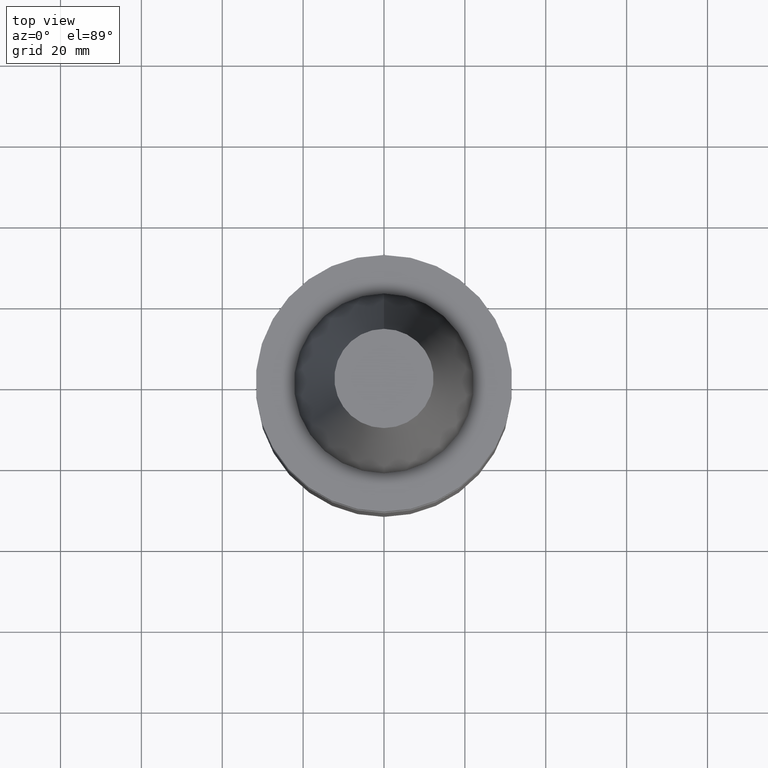
[diagram: clean part render]
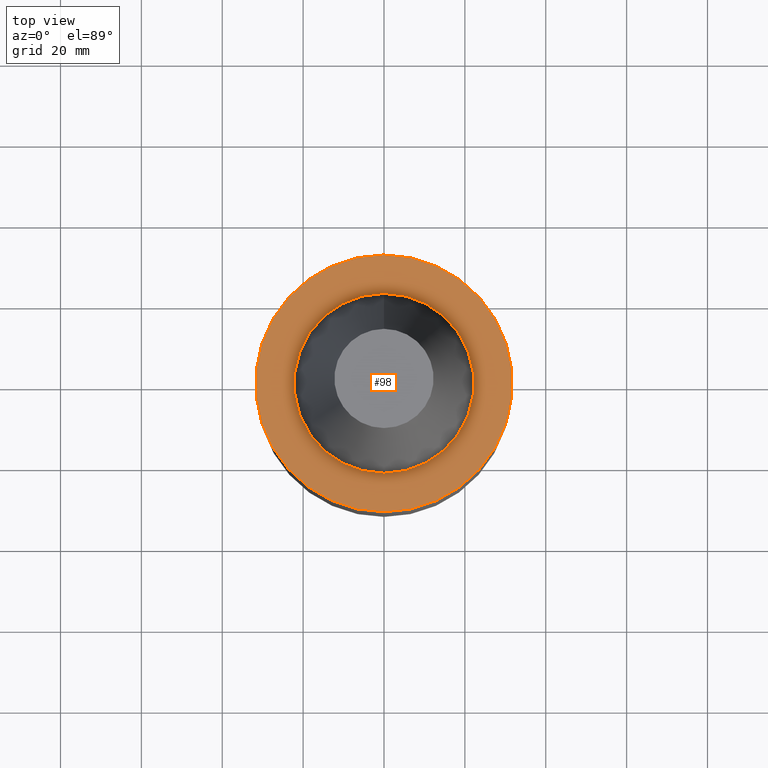
[diagram: same view with one face highlighted and labeled with its STEP entity id]
A machine part, top view. The second image highlights one B-rep face of the part: STEP entity #98.
In plain terms, the highlighted planar face has unit normal (-0, -0, 1).
Its self-contained STEP definition (entity closure, byte-faithful):
#56=EDGE_CURVE('Unnamed[1]',#153,#153,#154,.T.);
#98=ADVANCED_FACE('Unnamed[1]',(#217,#218),#219,.T.);
#118=EDGE_CURVE('Unnamed[1]',#249,#249,#250,.T.);
#153=VERTEX_POINT('',#286);
#154=CIRCLE('',#287,31.75);
#217=FACE_OUTER_BOUND('',#365,.T.);
#218=FACE_BOUND('',#366,.T.);
#219=PLANE('',#367);
#249=VERTEX_POINT('',#405);
#250=CIRCLE('',#406,22.225);
#286=CARTESIAN_POINT('',(6.12323399572837E-017,31.7499999999999,-0.999999999998632));
#287=AXIS2_PLACEMENT_3D('',#442,#443,#444);
#365=EDGE_LOOP('',(#512));
#366=EDGE_LOOP('',(#513));
#367=AXIS2_PLACEMENT_3D('',#514,#515,#516);
#405=CARTESIAN_POINT('',(6.12323399572838E-017,22.225,-0.999999999998633));
#406=AXIS2_PLACEMENT_3D('',#549,#550,#551);
#442=CARTESIAN_POINT('',(6.1232339957285E-017,-3.2335566977408E-014,-0.99999999999865));
#443=DIRECTION('',(6.12323399573677E-017,4.5708356297992E-016,-1.0));
#444=DIRECTION('',(-3.28154488480826E-032,1.0,4.5708356297992E-016));
#512=ORIENTED_EDGE('',*,*,#56,.F.);
#513=ORIENTED_EDGE('',*,*,#118,.T.);
#514=CARTESIAN_POINT('',(6.12323399572838E-017,26.9875,-0.999999999998632));
#515=DIRECTION('',(-6.12323399573677E-017,-1.22464679914735E-016,1.0));
#516=DIRECTION('',(1.23259516440783E-032,-1.0,-1.22464679914735E-016));
#549=CARTESIAN_POINT('',(6.1232339957285E-017,-3.2335566977408E-014,-0.99999999999865));
#550=DIRECTION('',(6.12323399573677E-017,4.57083562979934E-016,-1.0));
#551=DIRECTION('',(-3.28154488480789E-032,1.0,4.57083562979934E-016));